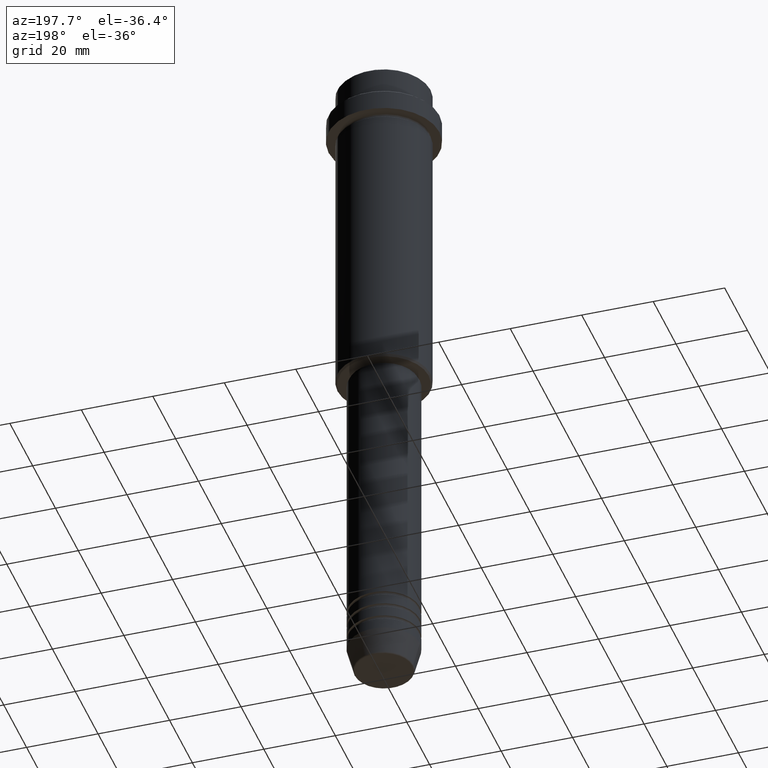
[diagram: clean part render]
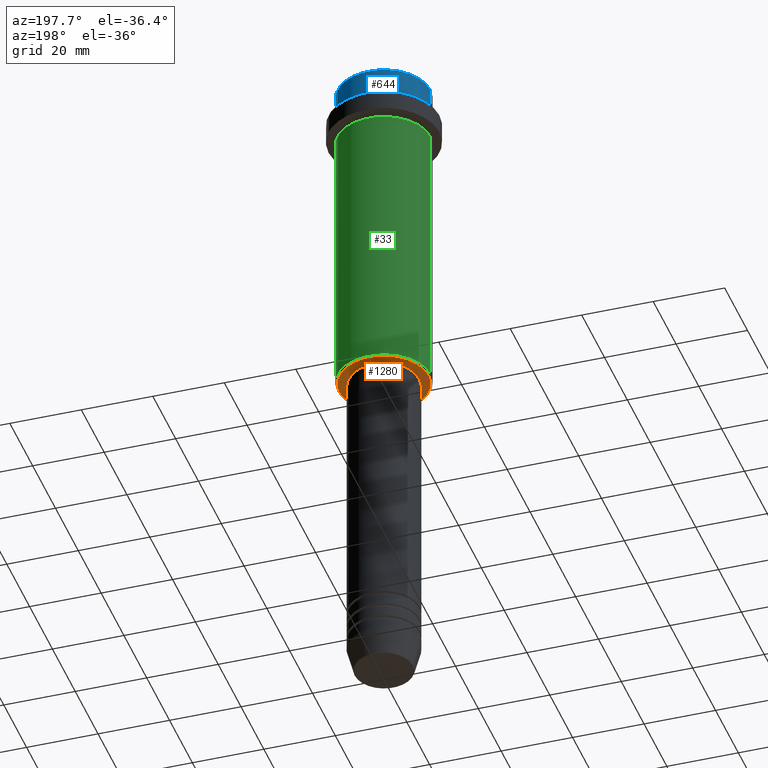
[diagram: same view with three faces highlighted in distinct colors, each labeled with its STEP entity id]
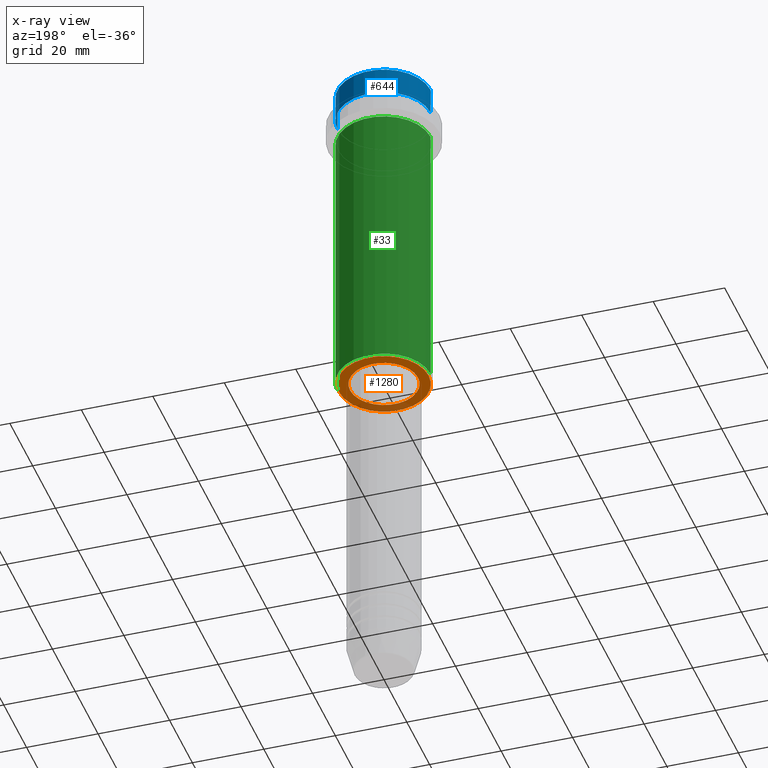
[diagram: x-ray of the same camera — body ghosted, the three highlighted faces saturated]
A machine part, auxiliary view with three faces highlighted in distinct colors.
The next image is the same camera in x-ray (body ghosted, the three faces saturated) — at least one of them is partly hidden behind the body in this view.
Their STEP definitions:

[orange] entity #1280 — the highlighted planar face has unit normal (0, 0, -1).
#14 = EDGE_LOOP ( 'NONE', ( #908, #808 ) ) ;
#74 = FACE_OUTER_BOUND ( 'NONE', #481, .T. ) ;
#91 = DIRECTION ( 'NONE',  ( 0.000000000000000000, 0.000000000000000000, -1.000000000000000000 ) ) ;
#103 = DIRECTION ( 'NONE',  ( 1.000000000000000000, 0.000000000000000000, 0.000000000000000000 ) ) ;
#143 = CIRCLE ( 'NONE', #924, 12.49999999999998401 ) ;
#163 = CARTESIAN_POINT ( 'NONE',  ( 0.000000000000000000, 0.000000000000000000, -95.00000000000000000 ) ) ;
#204 = CARTESIAN_POINT ( 'NONE',  ( 0.000000000000000000, 0.000000000000000000, -95.00000000000000000 ) ) ;
#213 = DIRECTION ( 'NONE',  ( 0.000000000000000000, 0.000000000000000000, -1.000000000000000000 ) ) ;
#253 = AXIS2_PLACEMENT_3D ( 'NONE', #204, #317, #103 ) ;
#289 = DIRECTION ( 'NONE',  ( -1.000000000000000000, 0.000000000000000000, -0.000000000000000000 ) ) ;
#309 = PLANE ( 'NONE',  #1210 ) ;
#317 = DIRECTION ( 'NONE',  ( -0.000000000000000000, -0.000000000000000000, 1.000000000000000000 ) ) ;
#342 = AXIS2_PLACEMENT_3D ( 'NONE', #1294, #1395, #930 ) ;
#351 = EDGE_CURVE ( 'NONE', #861, #565, #1230, .T. ) ;
#360 = EDGE_CURVE ( 'NONE', #565, #861, #504, .T. ) ;
#435 = VERTEX_POINT ( 'NONE', #836 ) ;
#481 = EDGE_LOOP ( 'NONE', ( #553, #639 ) ) ;
#499 = CARTESIAN_POINT ( 'NONE',  ( 12.49999999999998401, 0.000000000000000000, -95.00000000000000000 ) ) ;
#504 = CIRCLE ( 'NONE', #253, 9.499999999999996447 ) ;
#550 = CARTESIAN_POINT ( 'NONE',  ( 9.499999999999996447, 0.000000000000000000, -95.00000000000000000 ) ) ;
#553 = ORIENTED_EDGE ( 'NONE', *, *, #964, .T. ) ;
#565 = VERTEX_POINT ( 'NONE', #550 ) ;
#615 = VERTEX_POINT ( 'NONE', #499 ) ;
#622 = DIRECTION ( 'NONE',  ( -1.000000000000000000, 0.000000000000000000, 0.000000000000000000 ) ) ;
#626 = CIRCLE ( 'NONE', #648, 12.49999999999998401 ) ;
#639 = ORIENTED_EDGE ( 'NONE', *, *, #735, .T. ) ;
#648 = AXIS2_PLACEMENT_3D ( 'NONE', #655, #213, #744 ) ;
#655 = CARTESIAN_POINT ( 'NONE',  ( 0.000000000000000000, 0.000000000000000000, -95.00000000000000000 ) ) ;
#702 = CARTESIAN_POINT ( 'NONE',  ( -9.499999999999996447, 1.163414459189985091E-15, -95.00000000000000000 ) ) ;
#722 = DIRECTION ( 'NONE',  ( 0.000000000000000000, 0.000000000000000000, -1.000000000000000000 ) ) ;
#735 = EDGE_CURVE ( 'NONE', #435, #615, #143, .T. ) ;
#744 = DIRECTION ( 'NONE',  ( -1.000000000000000000, 0.000000000000000000, 0.000000000000000000 ) ) ;
#808 = ORIENTED_EDGE ( 'NONE', *, *, #351, .T. ) ;
#816 = FACE_BOUND ( 'NONE', #14, .T. ) ;
#836 = CARTESIAN_POINT ( 'NONE',  ( -12.49999999999998401, 1.561424668912874125E-15, -95.00000000000000000 ) ) ;
#861 = VERTEX_POINT ( 'NONE', #702 ) ;
#908 = ORIENTED_EDGE ( 'NONE', *, *, #360, .T. ) ;
#924 = AXIS2_PLACEMENT_3D ( 'NONE', #163, #722, #622 ) ;
#930 = DIRECTION ( 'NONE',  ( 1.000000000000000000, 0.000000000000000000, 0.000000000000000000 ) ) ;
#942 = CARTESIAN_POINT ( 'NONE',  ( 0.000000000000000000, 13.00000000000000000, -95.00000000000000000 ) ) ;
#964 = EDGE_CURVE ( 'NONE', #615, #435, #626, .T. ) ;
#1210 = AXIS2_PLACEMENT_3D ( 'NONE', #942, #91, #289 ) ;
#1230 = CIRCLE ( 'NONE', #342, 9.499999999999996447 ) ;
#1280 = ADVANCED_FACE ( 'NONE', ( #74, #816 ), #309, .T. ) ;
#1294 = CARTESIAN_POINT ( 'NONE',  ( 0.000000000000000000, 0.000000000000000000, -95.00000000000000000 ) ) ;
#1395 = DIRECTION ( 'NONE',  ( -0.000000000000000000, -0.000000000000000000, 1.000000000000000000 ) ) ;

[blue] entity #644 — the highlighted cylindrical surface (partial cylindrical patch) has radius 13 mm, axis along (-0, -0, 1).
#15 = LINE ( 'NONE', #865, #139 ) ;
#114 = CARTESIAN_POINT ( 'NONE',  ( -12.99999999999999822, 1.592040838891558898E-15, -7.999999999999998224 ) ) ;
#139 = VECTOR ( 'NONE', #972, 1000.000000000000000 ) ;
#140 = CARTESIAN_POINT ( 'NONE',  ( 0.000000000000000000, 0.000000000000000000, 0.000000000000000000 ) ) ;
#152 = ORIENTED_EDGE ( 'NONE', *, *, #1409, .T. ) ;
#156 = CARTESIAN_POINT ( 'NONE',  ( 12.99999999999999822, 0.000000000000000000, -0.4999999999999761302 ) ) ;
#188 = CARTESIAN_POINT ( 'NONE',  ( 0.000000000000000000, 0.000000000000000000, -7.999999999999998224 ) ) ;
#208 = DIRECTION ( 'NONE',  ( -0.000000000000000000, -0.000000000000000000, 1.000000000000000000 ) ) ;
#237 = CIRCLE ( 'NONE', #1362, 12.99999999999999822 ) ;
#290 = EDGE_CURVE ( 'NONE', #470, #1045, #586, .T. ) ;
#307 = CARTESIAN_POINT ( 'NONE',  ( 12.99999999999999822, 0.000000000000000000, -7.999999999999998224 ) ) ;
#332 = VERTEX_POINT ( 'NONE', #307 ) ;
#404 = DIRECTION ( 'NONE',  ( 1.000000000000000000, 0.000000000000000000, 0.000000000000000000 ) ) ;
#428 = AXIS2_PLACEMENT_3D ( 'NONE', #188, #208, #404 ) ;
#442 = EDGE_CURVE ( 'NONE', #332, #470, #732, .T. ) ;
#470 = VERTEX_POINT ( 'NONE', #114 ) ;
#519 = EDGE_CURVE ( 'NONE', #332, #1199, #15, .T. ) ;
#586 = LINE ( 'NONE', #1018, #1288 ) ;
#599 = EDGE_LOOP ( 'NONE', ( #746, #739, #152, #688 ) ) ;
#625 = AXIS2_PLACEMENT_3D ( 'NONE', #140, #691, #882 ) ;
#644 = ADVANCED_FACE ( 'NONE', ( #1024 ), #1353, .T. ) ;
#688 = ORIENTED_EDGE ( 'NONE', *, *, #519, .F. ) ;
#691 = DIRECTION ( 'NONE',  ( -0.000000000000000000, -0.000000000000000000, 1.000000000000000000 ) ) ;
#732 = CIRCLE ( 'NONE', #428, 12.99999999999999822 ) ;
#739 = ORIENTED_EDGE ( 'NONE', *, *, #290, .T. ) ;
#746 = ORIENTED_EDGE ( 'NONE', *, *, #442, .T. ) ;
#865 = CARTESIAN_POINT ( 'NONE',  ( 12.99999999999999822, 0.000000000000000000, 0.000000000000000000 ) ) ;
#882 = DIRECTION ( 'NONE',  ( 1.000000000000000000, 0.000000000000000000, 0.000000000000000000 ) ) ;
#972 = DIRECTION ( 'NONE',  ( -0.000000000000000000, -0.000000000000000000, 1.000000000000000000 ) ) ;
#1018 = CARTESIAN_POINT ( 'NONE',  ( -12.99999999999999822, 1.592040838891558898E-15, 0.000000000000000000 ) ) ;
#1024 = FACE_OUTER_BOUND ( 'NONE', #599, .T. ) ;
#1033 = DIRECTION ( 'NONE',  ( -0.000000000000000000, -0.000000000000000000, 1.000000000000000000 ) ) ;
#1045 = VERTEX_POINT ( 'NONE', #1351 ) ;
#1070 = CARTESIAN_POINT ( 'NONE',  ( 0.000000000000000000, 0.000000000000000000, -0.4999999999999761302 ) ) ;
#1095 = DIRECTION ( 'NONE',  ( 1.000000000000000000, 0.000000000000000000, 0.000000000000000000 ) ) ;
#1199 = VERTEX_POINT ( 'NONE', #156 ) ;
#1288 = VECTOR ( 'NONE', #1033, 1000.000000000000000 ) ;
#1308 = DIRECTION ( 'NONE',  ( 0.000000000000000000, 0.000000000000000000, -1.000000000000000000 ) ) ;
#1351 = CARTESIAN_POINT ( 'NONE',  ( -12.99999999999999822, 1.592040838891558898E-15, -0.4999999999999761302 ) ) ;
#1353 = CYLINDRICAL_SURFACE ( 'NONE', #625, 12.99999999999999822 ) ;
#1362 = AXIS2_PLACEMENT_3D ( 'NONE', #1070, #1308, #1095 ) ;
#1409 = EDGE_CURVE ( 'NONE', #1045, #1199, #237, .T. ) ;

[green] entity #33 — the highlighted cylindrical surface (partial cylindrical patch) has radius 13 mm, axis along (-0, -0, 1).
#23 = EDGE_CURVE ( 'NONE', #646, #1222, #92, .T. ) ;
#33 = ADVANCED_FACE ( 'NONE', ( #838 ), #907, .T. ) ;
#57 = VERTEX_POINT ( 'NONE', #1117 ) ;
#73 = VECTOR ( 'NONE', #649, 1000.000000000000000 ) ;
#92 = LINE ( 'NONE', #397, #831 ) ;
#137 = DIRECTION ( 'NONE',  ( 1.000000000000000000, 0.000000000000000000, 0.000000000000000000 ) ) ;
#183 = DIRECTION ( 'NONE',  ( 1.000000000000000000, 0.000000000000000000, 0.000000000000000000 ) ) ;
#187 = EDGE_CURVE ( 'NONE', #1222, #57, #887, .T. ) ;
#190 = CARTESIAN_POINT ( 'NONE',  ( 0.000000000000000000, 0.000000000000000000, -16.00000000000000000 ) ) ;
#205 = CARTESIAN_POINT ( 'NONE',  ( 13.00000000000000000, 0.000000000000000000, -16.00000000000000000 ) ) ;
#206 = DIRECTION ( 'NONE',  ( -1.000000000000000000, 0.000000000000000000, 0.000000000000000000 ) ) ;
#363 = CARTESIAN_POINT ( 'NONE',  ( 0.000000000000000000, 0.000000000000000000, 0.000000000000000000 ) ) ;
#397 = CARTESIAN_POINT ( 'NONE',  ( 13.00000000000000000, 0.000000000000000000, 0.000000000000000000 ) ) ;
#485 = AXIS2_PLACEMENT_3D ( 'NONE', #526, #1298, #206 ) ;
#526 = CARTESIAN_POINT ( 'NONE',  ( 0.000000000000000000, 0.000000000000000000, -94.49999999999997158 ) ) ;
#534 = CARTESIAN_POINT ( 'NONE',  ( -13.00000000000000000, 1.592040838891559095E-15, -94.49999999999997158 ) ) ;
#567 = ORIENTED_EDGE ( 'NONE', *, *, #927, .T. ) ;
#581 = VERTEX_POINT ( 'NONE', #534 ) ;
#646 = VERTEX_POINT ( 'NONE', #1016 ) ;
#649 = DIRECTION ( 'NONE',  ( -0.000000000000000000, -0.000000000000000000, 1.000000000000000000 ) ) ;
#662 = EDGE_LOOP ( 'NONE', ( #856, #567, #923, #686 ) ) ;
#678 = DIRECTION ( 'NONE',  ( -0.000000000000000000, -0.000000000000000000, 1.000000000000000000 ) ) ;
#686 = ORIENTED_EDGE ( 'NONE', *, *, #23, .F. ) ;
#831 = VECTOR ( 'NONE', #833, 1000.000000000000000 ) ;
#833 = DIRECTION ( 'NONE',  ( -0.000000000000000000, -0.000000000000000000, 1.000000000000000000 ) ) ;
#838 = FACE_OUTER_BOUND ( 'NONE', #662, .T. ) ;
#856 = ORIENTED_EDGE ( 'NONE', *, *, #895, .T. ) ;
#862 = CARTESIAN_POINT ( 'NONE',  ( -13.00000000000000000, 1.592040838891559095E-15, 0.000000000000000000 ) ) ;
#887 = CIRCLE ( 'NONE', #916, 13.00000000000000000 ) ;
#895 = EDGE_CURVE ( 'NONE', #646, #581, #1379, .T. ) ;
#907 = CYLINDRICAL_SURFACE ( 'NONE', #1295, 13.00000000000000000 ) ;
#913 = DIRECTION ( 'NONE',  ( -0.000000000000000000, -0.000000000000000000, 1.000000000000000000 ) ) ;
#916 = AXIS2_PLACEMENT_3D ( 'NONE', #190, #678, #183 ) ;
#923 = ORIENTED_EDGE ( 'NONE', *, *, #187, .F. ) ;
#927 = EDGE_CURVE ( 'NONE', #581, #57, #978, .T. ) ;
#978 = LINE ( 'NONE', #862, #73 ) ;
#1016 = CARTESIAN_POINT ( 'NONE',  ( 13.00000000000000000, 0.000000000000000000, -94.49999999999997158 ) ) ;
#1117 = CARTESIAN_POINT ( 'NONE',  ( -13.00000000000000000, 1.592040838891559095E-15, -16.00000000000000000 ) ) ;
#1222 = VERTEX_POINT ( 'NONE', #205 ) ;
#1295 = AXIS2_PLACEMENT_3D ( 'NONE', #363, #913, #137 ) ;
#1298 = DIRECTION ( 'NONE',  ( -0.000000000000000000, -0.000000000000000000, 1.000000000000000000 ) ) ;
#1379 = CIRCLE ( 'NONE', #485, 13.00000000000000000 ) ;